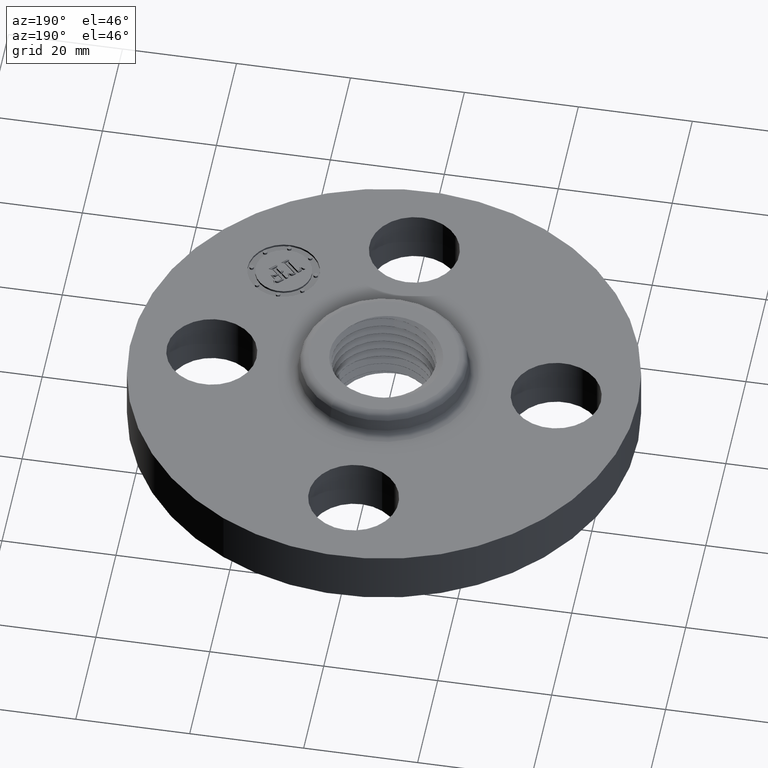
[diagram: clean part render]
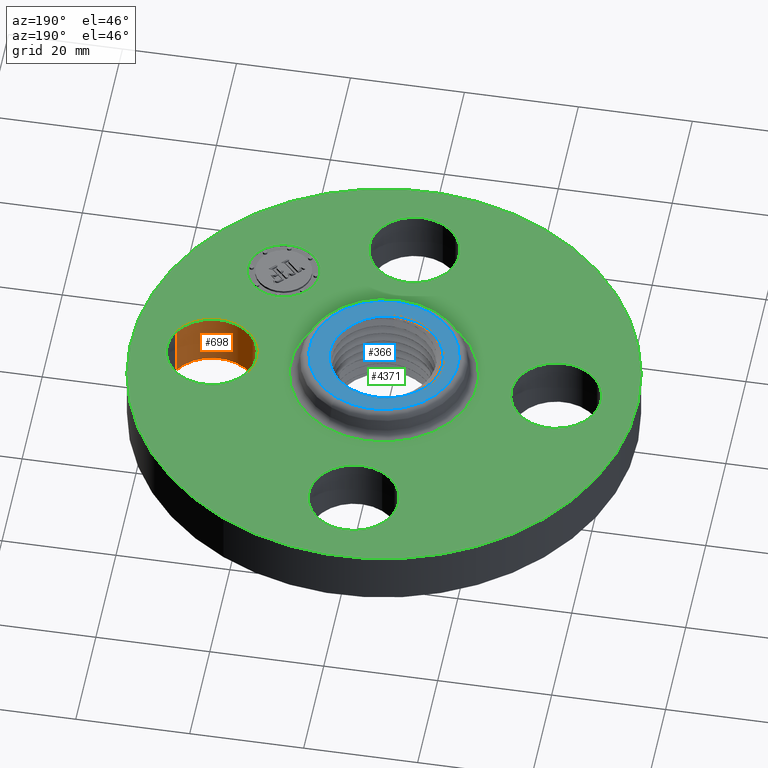
[diagram: same view with three faces highlighted in distinct colors, each labeled with its STEP entity id]
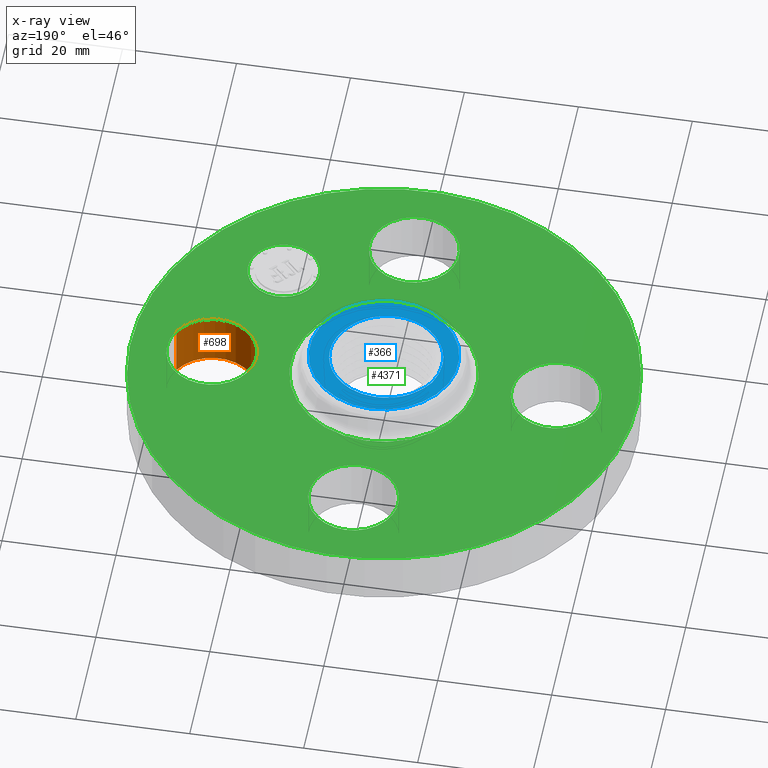
[diagram: x-ray of the same camera — body ghosted, the three highlighted faces saturated]
A machine part, auxiliary view with three faces highlighted in distinct colors.
The next image is the same camera in x-ray (body ghosted, the three faces saturated) — at least one of them is partly hidden behind the body in this view.
Their STEP definitions:

[orange] entity #698 — the highlighted cylindrical surface (partial cylindrical patch) has radius 7.874 mm, axis along (0, -0, -1).
#166=AXIS2_PLACEMENT_3D('Circle Axis2P3D',#164,#165,$) ;
#671=AXIS2_PLACEMENT_3D('Cylinder Axis2P3D',#668,#669,#670) ;
#689=AXIS2_PLACEMENT_3D('Circle Axis2P3D',#687,#688,$) ;
#164=CARTESIAN_POINT('Axis2P3D Location',(1.19,-1.39870617276E-016,0.)) ;
#168=CARTESIAN_POINT('Vertex',(1.46205059419,-0.148621916968,0.)) ;
#170=CARTESIAN_POINT('Vertex',(0.917949405818,0.148621916968,0.)) ;
#668=CARTESIAN_POINT('Axis2P3D Location',(1.19,0.,0.376062992128)) ;
#673=CARTESIAN_POINT('Line Origine',(1.46205059419,-0.148621916968,0.190000000001)) ;
#677=CARTESIAN_POINT('Vertex',(1.46205059419,-0.148621916968,0.380000000002)) ;
#680=CARTESIAN_POINT('Line Origine',(0.917949405818,0.148621916968,0.190000000001)) ;
#684=CARTESIAN_POINT('Vertex',(0.917949405818,0.148621916968,0.380000000002)) ;
#687=CARTESIAN_POINT('Axis2P3D Location',(1.19,0.,0.380000000002)) ;
#165=DIRECTION('Axis2P3D Direction',(0.,0.,-0.0393700787402)) ;
#669=DIRECTION('Axis2P3D Direction',(0.,-0.,-0.0393700787402)) ;
#670=DIRECTION('Axis2P3D XDirection',(-0.0345504945626,0.0188750212049,0.)) ;
#674=DIRECTION('Vector Direction',(0.,0.,-0.0393700787402)) ;
#681=DIRECTION('Vector Direction',(0.,0.,-0.0393700787402)) ;
#688=DIRECTION('Axis2P3D Direction',(0.,-0.,-0.0393700787402)) ;
#675=VECTOR('Line Direction',#674,0.0393700787402) ;
#682=VECTOR('Line Direction',#681,0.0393700787402) ;
#693=ORIENTED_EDGE('',*,*,#679,.F.) ;
#694=ORIENTED_EDGE('',*,*,#172,.T.) ;
#695=ORIENTED_EDGE('',*,*,#686,.T.) ;
#696=ORIENTED_EDGE('',*,*,#691,.F.) ;
#698=ADVANCED_FACE('PartBody',(#697),#672,.F.) ;
#167=CIRCLE('generated circle',#166,0.310000000001) ;
#690=CIRCLE('generated circle',#689,0.310000000001) ;
#672=CYLINDRICAL_SURFACE('generated cylinder',#671,0.310000000001) ;
#172=EDGE_CURVE('',#169,#171,#167,.T.) ;
#679=EDGE_CURVE('',#169,#678,#676,.F.) ;
#686=EDGE_CURVE('',#171,#685,#683,.F.) ;
#691=EDGE_CURVE('',#678,#685,#690,.T.) ;
#692=EDGE_LOOP('',(#693,#694,#695,#696)) ;
#697=FACE_OUTER_BOUND('',#692,.T.) ;
#676=LINE('Line',#673,#675) ;
#683=LINE('Line',#680,#682) ;
#169=VERTEX_POINT('',#168) ;
#171=VERTEX_POINT('',#170) ;
#678=VERTEX_POINT('',#677) ;
#685=VERTEX_POINT('',#684) ;

[blue] entity #366 — the highlighted planar face has unit normal (0, 0, -1).
#240=AXIS2_PLACEMENT_3D('Plane Axis2P3D',#237,#238,#239) ;
#244=AXIS2_PLACEMENT_3D('Circle Axis2P3D',#242,#243,$) ;
#253=AXIS2_PLACEMENT_3D('Circle Axis2P3D',#251,#252,$) ;
#262=AXIS2_PLACEMENT_3D('Circle Axis2P3D',#260,#261,$) ;
#237=CARTESIAN_POINT('Axis2P3D Location',(0.,0.512915165604,0.560000000002)) ;
#242=CARTESIAN_POINT('Axis2P3D Location',(0.,0.,0.560000000002)) ;
#246=CARTESIAN_POINT('Vertex',(0.245904629528,0.450125405063,0.560000000002)) ;
#248=CARTESIAN_POINT('Vertex',(-0.245904629528,-0.450125405063,0.560000000002)) ;
#251=CARTESIAN_POINT('Axis2P3D Location',(0.,0.,0.560000000002)) ;
#260=CARTESIAN_POINT('Axis2P3D Location',(3.49676543189E-017,0.,0.560000000002)) ;
#264=CARTESIAN_POINT('Vertex',(0.303226636795,-0.19415982399,0.55999983672)) ;
#266=CARTESIAN_POINT('Vertex',(0.271763771656,-0.23619671375,0.560000043672)) ;
#270=CARTESIAN_POINT('Control Point',(0.175885699981,-0.321954118521,0.560000000002)) ;
#271=CARTESIAN_POINT('Control Point',(0.198020836911,-0.308317199989,0.560000000002)) ;
#272=CARTESIAN_POINT('Control Point',(0.218891347152,-0.292750687006,0.560000000002)) ;
#273=CARTESIAN_POINT('Control Point',(0.238265993291,-0.27540750753,0.560000000002)) ;
#274=CARTESIAN_POINT('Control Point',(0.255943494932,-0.256481932588,0.560000000002)) ;
#275=CARTESIAN_POINT('Control Point',(0.271763692561,-0.236196661494,0.560000000002)) ;
#276=CARTESIAN_POINT('Vertex',(0.175885699981,-0.321954118521,0.560000000002)) ;
#280=CARTESIAN_POINT('Control Point',(1.07858490947E-006,-0.376440628624,0.560000000002)) ;
#281=CARTESIAN_POINT('Control Point',(0.0374170056616,-0.374537086803,0.560000000002)) ;
#282=CARTESIAN_POINT('Control Point',(0.0744716476934,-0.367979244206,0.560000000002)) ;
#283=CARTESIAN_POINT('Control Point',(0.11040407537,-0.356823018752,0.560000000002)) ;
#284=CARTESIAN_POINT('Control Point',(0.144422442603,-0.341337864792,0.560000000002)) ;
#285=CARTESIAN_POINT('Control Point',(0.175885699981,-0.321954118521,0.560000000002)) ;
#286=CARTESIAN_POINT('Vertex',(1.07858490947E-006,-0.376440628624,0.560000000002)) ;
#290=CARTESIAN_POINT('Control Point',(-0.367122974252,0.195408545747,0.560000000002)) ;
#291=CARTESIAN_POINT('Control Point',(-0.385067261913,0.157598348407,0.560000000002)) ;
#292=CARTESIAN_POINT('Control Point',(-0.398200343318,0.117634301721,0.560000000002)) ;
#293=CARTESIAN_POINT('Control Point',(-0.406160625388,0.0763168017211,0.560000000002)) ;
#294=CARTESIAN_POINT('Control Point',(-0.410882939198,0.00116509146093,0.560000000002)) ;
#295=CARTESIAN_POINT('Control Point',(-0.398567287668,-0.0725302165956,0.560000000002)) ;
#296=CARTESIAN_POINT('Control Point',(-0.38976881603,-0.104527307294,0.560000000002)) ;
#297=CARTESIAN_POINT('Control Point',(-0.362792365286,-0.173807708988,0.560000000002)) ;
#298=CARTESIAN_POINT('Control Point',(-0.320799856773,-0.234908153153,0.560000000002)) ;
#299=CARTESIAN_POINT('Control Point',(-0.293269642997,-0.265531525144,0.560000000002)) ;
#300=CARTESIAN_POINT('Control Point',(-0.231101421794,-0.318774121899,0.560000000002)) ;
#301=CARTESIAN_POINT('Control Point',(-0.157832769022,-0.354079330652,0.560000000002)) ;
#302=CARTESIAN_POINT('Control Point',(-0.119190587789,-0.366768460797,0.560000000002)) ;
#303=CARTESIAN_POINT('Control Point',(-0.0715748262744,-0.375684363477,0.560000000002)) ;
#304=CARTESIAN_POINT('Control Point',(-0.0237400826647,-0.377023229892,0.560000000002)) ;
#305=CARTESIAN_POINT('Control Point',(-0.0158093045631,-0.37703682523,0.560000000002)) ;
#306=CARTESIAN_POINT('Control Point',(-0.0078960669187,-0.376842397266,0.560000000002)) ;
#307=CARTESIAN_POINT('Control Point',(1.07858490958E-006,-0.376440628624,0.560000000002)) ;
#308=CARTESIAN_POINT('Vertex',(-0.367122974252,0.195408545747,0.560000000002)) ;
#312=CARTESIAN_POINT('Control Point',(-0.367122974252,0.195408545747,0.560000000002)) ;
#313=CARTESIAN_POINT('Control Point',(-0.344873934272,0.233315249484,0.560000000002)) ;
#314=CARTESIAN_POINT('Control Point',(-0.317667638603,0.268186947047,0.560000000002)) ;
#315=CARTESIAN_POINT('Control Point',(-0.28602899032,0.299152422083,0.560000000002)) ;
#316=CARTESIAN_POINT('Control Point',(-0.247406688408,0.327941758176,0.560000000002)) ;
#317=CARTESIAN_POINT('Control Point',(-0.205509186502,0.350568777477,0.560000000002)) ;
#318=CARTESIAN_POINT('Control Point',(-0.20187920545,0.352470417993,0.560000000002)) ;
#319=CARTESIAN_POINT('Control Point',(-0.198227533781,0.354325078231,0.560000000002)) ;
#320=CARTESIAN_POINT('Control Point',(-0.194553964888,0.356132912841,0.560000000002)) ;
#321=CARTESIAN_POINT('Vertex',(-0.194553964888,0.356132912841,0.560000000002)) ;
#325=CARTESIAN_POINT('Control Point',(-0.194553964888,0.356132912841,0.560000000002)) ;
#326=CARTESIAN_POINT('Control Point',(-0.161889371501,0.372207793666,0.560000000002)) ;
#327=CARTESIAN_POINT('Control Point',(-0.127493531369,0.384580458599,0.560000000002)) ;
#328=CARTESIAN_POINT('Control Point',(-0.0919095960874,0.392990698652,0.560000000002)) ;
#329=CARTESIAN_POINT('Control Point',(-0.0518247995843,0.39777077206,0.560000000002)) ;
#330=CARTESIAN_POINT('Control Point',(-0.0118151227335,0.397515379548,0.560000000002)) ;
#331=CARTESIAN_POINT('Control Point',(-0.00787243858617,0.397441284899,0.560000000002)) ;
#332=CARTESIAN_POINT('Control Point',(-0.0039331349192,0.397318337377,0.560000000002)) ;
#333=CARTESIAN_POINT('Control Point',(3.02082424722E-006,0.397146576951,0.560000000002)) ;
#334=CARTESIAN_POINT('Vertex',(3.02082424725E-006,0.397146576951,0.560000000002)) ;
#338=CARTESIAN_POINT('Control Point',(3.02082424718E-006,0.397146576951,0.560000000002)) ;
#339=CARTESIAN_POINT('Control Point',(0.0408746285088,0.395363079424,0.560000000002)) ;
#340=CARTESIAN_POINT('Control Point',(0.0814067849757,0.388316590039,0.560000000002)) ;
#341=CARTESIAN_POINT('Control Point',(0.120684605011,0.37606329597,0.560000000002)) ;
#342=CARTESIAN_POINT('Control Point',(0.194948864503,0.341747986542,0.560000000002)) ;
#343=CARTESIAN_POINT('Control Point',(0.257571560428,0.289840066362,0.560000000002)) ;
#344=CARTESIAN_POINT('Control Point',(0.285216413669,0.259984357491,0.560000000002)) ;
#345=CARTESIAN_POINT('Control Point',(0.32254468654,0.20712666374,0.560000000002)) ;
#346=CARTESIAN_POINT('Control Point',(0.347780474909,0.148238095617,0.560000000002)) ;
#347=CARTESIAN_POINT('Control Point',(0.355452374334,0.125490539608,0.560000000002)) ;
#348=CARTESIAN_POINT('Control Point',(0.37097068712,0.0635720861648,0.560000000002)) ;
#349=CARTESIAN_POINT('Control Point',(0.37311209499,-0.000261050015573,0.560000000002)) ;
#350=CARTESIAN_POINT('Control Point',(0.369090753497,-0.0399700342336,0.560000000002)) ;
#351=CARTESIAN_POINT('Control Point',(0.355571961367,-0.0963026493532,0.560000000002)) ;
#352=CARTESIAN_POINT('Control Point',(0.33166475394,-0.148317302841,0.560000000002)) ;
#353=CARTESIAN_POINT('Control Point',(0.323119655055,-0.164219411596,0.560000000002)) ;
#354=CARTESIAN_POINT('Control Point',(0.313621663483,-0.179524990961,0.560000000002)) ;
#355=CARTESIAN_POINT('Control Point',(0.303226429153,-0.194159697024,0.560000000002)) ;
#238=DIRECTION('Axis2P3D Direction',(0.,0.,-0.0393700787402)) ;
#239=DIRECTION('Axis2P3D XDirection',(0.0393700787402,0.,0.)) ;
#243=DIRECTION('Axis2P3D Direction',(0.,0.,-0.0393700787402)) ;
#252=DIRECTION('Axis2P3D Direction',(0.,0.,-0.0393700787402)) ;
#261=DIRECTION('Axis2P3D Direction',(0.,0.,-0.0393700787402)) ;
#257=ORIENTED_EDGE('',*,*,#250,.F.) ;
#258=ORIENTED_EDGE('',*,*,#255,.F.) ;
#358=ORIENTED_EDGE('',*,*,#268,.T.) ;
#359=ORIENTED_EDGE('',*,*,#278,.F.) ;
#360=ORIENTED_EDGE('',*,*,#288,.F.) ;
#361=ORIENTED_EDGE('',*,*,#310,.F.) ;
#362=ORIENTED_EDGE('',*,*,#323,.T.) ;
#363=ORIENTED_EDGE('',*,*,#336,.T.) ;
#364=ORIENTED_EDGE('',*,*,#356,.T.) ;
#365=FACE_BOUND('',#357,.T.) ;
#366=ADVANCED_FACE('PartBody',(#259,#365),#241,.F.) ;
#269=B_SPLINE_CURVE_WITH_KNOTS('',5,(#270,#271,#272,#273,#274,#275),.UNSPECIFIED.,.F.,.U.,(6,6),(0.,4.81634190142),.UNSPECIFIED.) ;
#279=B_SPLINE_CURVE_WITH_KNOTS('',5,(#280,#281,#282,#283,#284,#285),.UNSPECIFIED.,.F.,.U.,(6,6),(0.,6.84602970269),.UNSPECIFIED.) ;
#289=B_SPLINE_CURVE_WITH_KNOTS('',5,(#290,#291,#292,#293,#294,#295,#296,#297,#298,#299,#300,#301,#302,#303,#304,#305,#306,#307),.UNSPECIFIED.,.F.,.U.,(6,3,3,3,3,6),(0.,7.28034621343,13.1015462095,20.3778601151,27.6564216365,29.1013702694),.UNSPECIFIED.) ;
#311=B_SPLINE_CURVE_WITH_KNOTS('',5,(#312,#313,#314,#315,#316,#317,#318,#319,#320),.UNSPECIFIED.,.F.,.U.,(6,3,6),(0.,7.64552726927,8.3654131561),.UNSPECIFIED.) ;
#324=B_SPLINE_CURVE_WITH_KNOTS('',5,(#325,#326,#327,#328,#329,#330,#331,#332,#333),.UNSPECIFIED.,.F.,.U.,(6,3,6),(0.,6.40107221148,7.10090774197),.UNSPECIFIED.) ;
#337=B_SPLINE_CURVE_WITH_KNOTS('',5,(#338,#339,#340,#341,#342,#343,#344,#345,#346,#347,#348,#349,#350,#351,#352,#353,#354,#355),.UNSPECIFIED.,.F.,.U.,(6,3,3,3,3,6),(0.,7.26683726532,14.5357873405,18.8954227001,26.1617476559,29.5129783791),.UNSPECIFIED.) ;
#245=CIRCLE('generated circle',#244,0.512915165604) ;
#254=CIRCLE('generated circle',#253,0.512915165604) ;
#263=CIRCLE('generated circle',#262,0.360061708862) ;
#250=EDGE_CURVE('',#247,#249,#245,.T.) ;
#255=EDGE_CURVE('',#249,#247,#254,.T.) ;
#268=EDGE_CURVE('',#265,#267,#263,.T.) ;
#278=EDGE_CURVE('',#277,#267,#269,.T.) ;
#288=EDGE_CURVE('',#287,#277,#279,.T.) ;
#310=EDGE_CURVE('',#309,#287,#289,.T.) ;
#323=EDGE_CURVE('',#309,#322,#311,.T.) ;
#336=EDGE_CURVE('',#322,#335,#324,.T.) ;
#356=EDGE_CURVE('',#335,#265,#337,.T.) ;
#256=EDGE_LOOP('',(#257,#258)) ;
#357=EDGE_LOOP('',(#358,#359,#360,#361,#362,#363,#364)) ;
#259=FACE_OUTER_BOUND('',#256,.T.) ;
#241=PLANE('',#240) ;
#247=VERTEX_POINT('',#246) ;
#249=VERTEX_POINT('',#248) ;
#265=VERTEX_POINT('',#264) ;
#267=VERTEX_POINT('',#266) ;
#277=VERTEX_POINT('',#276) ;
#287=VERTEX_POINT('',#286) ;
#309=VERTEX_POINT('',#308) ;
#322=VERTEX_POINT('',#321) ;
#335=VERTEX_POINT('',#334) ;

[green] entity #4371 — the highlighted planar face has unit normal (0, 0, -1).
#388=AXIS2_PLACEMENT_3D('Circle Axis2P3D',#386,#387,$) ;
#400=AXIS2_PLACEMENT_3D('Circle Axis2P3D',#398,#399,$) ;
#431=AXIS2_PLACEMENT_3D('Circle Axis2P3D',#429,#430,$) ;
#443=AXIS2_PLACEMENT_3D('Circle Axis2P3D',#441,#442,$) ;
#474=AXIS2_PLACEMENT_3D('Circle Axis2P3D',#472,#473,$) ;
#486=AXIS2_PLACEMENT_3D('Circle Axis2P3D',#484,#485,$) ;
#589=AXIS2_PLACEMENT_3D('Circle Axis2P3D',#587,#588,$) ;
#615=AXIS2_PLACEMENT_3D('Circle Axis2P3D',#613,#614,$) ;
#639=AXIS2_PLACEMENT_3D('Circle Axis2P3D',#637,#638,$) ;
#658=AXIS2_PLACEMENT_3D('Circle Axis2P3D',#656,#657,$) ;
#689=AXIS2_PLACEMENT_3D('Circle Axis2P3D',#687,#688,$) ;
#701=AXIS2_PLACEMENT_3D('Circle Axis2P3D',#699,#700,$) ;
#4327=AXIS2_PLACEMENT_3D('Plane Axis2P3D',#4324,#4325,#4326) ;
#4355=AXIS2_PLACEMENT_3D('Circle Axis2P3D',#4353,#4354,$) ;
#4364=AXIS2_PLACEMENT_3D('Circle Axis2P3D',#4362,#4363,$) ;
#376=CARTESIAN_POINT('Vertex',(-0.148621916968,-1.46205059419,0.380000000002)) ;
#383=CARTESIAN_POINT('Vertex',(0.148621916968,-0.917949405818,0.380000000002)) ;
#386=CARTESIAN_POINT('Axis2P3D Location',(-6.70041327261E-017,-1.19,0.380000000002)) ;
#398=CARTESIAN_POINT('Axis2P3D Location',(-6.70041327261E-017,-1.19,0.380000000002)) ;
#419=CARTESIAN_POINT('Vertex',(-1.46205059419,0.148621916968,0.380000000002)) ;
#426=CARTESIAN_POINT('Vertex',(-0.917949405818,-0.148621916968,0.380000000002)) ;
#429=CARTESIAN_POINT('Axis2P3D Location',(-1.19,-1.45732969099E-016,0.380000000002)) ;
#441=CARTESIAN_POINT('Axis2P3D Location',(-1.19,-1.45732969099E-016,0.380000000002)) ;
#462=CARTESIAN_POINT('Vertex',(0.148621916968,1.46205059419,0.380000000002)) ;
#469=CARTESIAN_POINT('Vertex',(-0.148621916968,0.917949405818,0.380000000002)) ;
#472=CARTESIAN_POINT('Axis2P3D Location',(-7.87288363731E-017,1.19,0.380000000002)) ;
#484=CARTESIAN_POINT('Axis2P3D Location',(-7.87288363731E-017,1.19,0.380000000002)) ;
#587=CARTESIAN_POINT('Axis2P3D Location',(0.,0.,0.380000000002)) ;
#591=CARTESIAN_POINT('Vertex',(-0.309395343028,-0.566344376568,0.380000000002)) ;
#593=CARTESIAN_POINT('Vertex',(0.309395343028,0.566344376568,0.380000000002)) ;
#613=CARTESIAN_POINT('Axis2P3D Location',(0.,0.,0.380000000002)) ;
#634=CARTESIAN_POINT('Vertex',(-0.838994692561,-1.53576948331,0.380000000002)) ;
#637=CARTESIAN_POINT('Axis2P3D Location',(0.,0.,0.380000000002)) ;
#641=CARTESIAN_POINT('Vertex',(0.838994692561,1.53576948331,0.380000000002)) ;
#656=CARTESIAN_POINT('Axis2P3D Location',(0.,0.,0.380000000002)) ;
#677=CARTESIAN_POINT('Vertex',(1.46205059419,-0.148621916968,0.380000000002)) ;
#684=CARTESIAN_POINT('Vertex',(0.917949405818,0.148621916968,0.380000000002)) ;
#687=CARTESIAN_POINT('Axis2P3D Location',(1.19,0.,0.380000000002)) ;
#699=CARTESIAN_POINT('Axis2P3D Location',(1.19,0.,0.380000000002)) ;
#4324=CARTESIAN_POINT('Axis2P3D Location',(0.,1.75000000001,0.380000000002)) ;
#4353=CARTESIAN_POINT('Axis2P3D Location',(0.841457069615,-0.841457069615,0.380000000002)) ;
#4357=CARTESIAN_POINT('Vertex',(1.01646599796,-0.666448141271,0.380000000002)) ;
#4359=CARTESIAN_POINT('Vertex',(0.666448141271,-1.01646599796,0.380000000002)) ;
#4362=CARTESIAN_POINT('Axis2P3D Location',(0.841457069615,-0.841457069615,0.380000000002)) ;
#387=DIRECTION('Axis2P3D Direction',(0.,-0.,-0.0393700787402)) ;
#399=DIRECTION('Axis2P3D Direction',(0.,-0.,-0.0393700787402)) ;
#430=DIRECTION('Axis2P3D Direction',(-0.,0.,-0.0393700787402)) ;
#442=DIRECTION('Axis2P3D Direction',(-0.,0.,-0.0393700787402)) ;
#473=DIRECTION('Axis2P3D Direction',(0.,0.,-0.0393700787402)) ;
#485=DIRECTION('Axis2P3D Direction',(0.,0.,-0.0393700787402)) ;
#588=DIRECTION('Axis2P3D Direction',(0.,0.,-0.0393700787402)) ;
#614=DIRECTION('Axis2P3D Direction',(0.,0.,-0.0393700787402)) ;
#638=DIRECTION('Axis2P3D Direction',(0.,0.,-0.0393700787402)) ;
#657=DIRECTION('Axis2P3D Direction',(0.,0.,-0.0393700787402)) ;
#688=DIRECTION('Axis2P3D Direction',(0.,-0.,-0.0393700787402)) ;
#700=DIRECTION('Axis2P3D Direction',(0.,-0.,-0.0393700787402)) ;
#4325=DIRECTION('Axis2P3D Direction',(0.,0.,-0.0393700787402)) ;
#4326=DIRECTION('Axis2P3D XDirection',(0.0393700787402,0.,0.)) ;
#4354=DIRECTION('Axis2P3D Direction',(0.,0.,-0.0393700787402)) ;
#4363=DIRECTION('Axis2P3D Direction',(0.,0.,-0.0393700787402)) ;
#4330=ORIENTED_EDGE('',*,*,#660,.F.) ;
#4331=ORIENTED_EDGE('',*,*,#643,.F.) ;
#4334=ORIENTED_EDGE('',*,*,#703,.T.) ;
#4335=ORIENTED_EDGE('',*,*,#691,.T.) ;
#4338=ORIENTED_EDGE('',*,*,#595,.T.) ;
#4339=ORIENTED_EDGE('',*,*,#617,.T.) ;
#4342=ORIENTED_EDGE('',*,*,#390,.T.) ;
#4343=ORIENTED_EDGE('',*,*,#402,.T.) ;
#4346=ORIENTED_EDGE('',*,*,#433,.T.) ;
#4347=ORIENTED_EDGE('',*,*,#445,.T.) ;
#4350=ORIENTED_EDGE('',*,*,#476,.T.) ;
#4351=ORIENTED_EDGE('',*,*,#488,.T.) ;
#4368=ORIENTED_EDGE('',*,*,#4361,.T.) ;
#4369=ORIENTED_EDGE('',*,*,#4366,.T.) ;
#4336=FACE_BOUND('',#4333,.T.) ;
#4340=FACE_BOUND('',#4337,.T.) ;
#4344=FACE_BOUND('',#4341,.T.) ;
#4348=FACE_BOUND('',#4345,.T.) ;
#4352=FACE_BOUND('',#4349,.T.) ;
#4370=FACE_BOUND('',#4367,.T.) ;
#4371=ADVANCED_FACE('PartBody',(#4332,#4336,#4340,#4344,#4348,#4352,#4370),#4328,.F.) ;
#389=CIRCLE('generated circle',#388,0.310000000001) ;
#401=CIRCLE('generated circle',#400,0.310000000001) ;
#432=CIRCLE('generated circle',#431,0.310000000001) ;
#444=CIRCLE('generated circle',#443,0.310000000001) ;
#475=CIRCLE('generated circle',#474,0.310000000001) ;
#487=CIRCLE('generated circle',#486,0.310000000001) ;
#590=CIRCLE('generated circle',#589,0.645345977873) ;
#616=CIRCLE('generated circle',#615,0.645345977873) ;
#640=CIRCLE('generated circle',#639,1.75000000001) ;
#659=CIRCLE('generated circle',#658,1.75000000001) ;
#690=CIRCLE('generated circle',#689,0.310000000001) ;
#702=CIRCLE('generated circle',#701,0.310000000001) ;
#4356=CIRCLE('generated circle',#4355,0.247500000001) ;
#4365=CIRCLE('generated circle',#4364,0.247500000001) ;
#390=EDGE_CURVE('',#377,#384,#389,.T.) ;
#402=EDGE_CURVE('',#384,#377,#401,.T.) ;
#433=EDGE_CURVE('',#420,#427,#432,.T.) ;
#445=EDGE_CURVE('',#427,#420,#444,.T.) ;
#476=EDGE_CURVE('',#463,#470,#475,.T.) ;
#488=EDGE_CURVE('',#470,#463,#487,.T.) ;
#595=EDGE_CURVE('',#592,#594,#590,.T.) ;
#617=EDGE_CURVE('',#594,#592,#616,.T.) ;
#643=EDGE_CURVE('',#635,#642,#640,.T.) ;
#660=EDGE_CURVE('',#642,#635,#659,.T.) ;
#691=EDGE_CURVE('',#678,#685,#690,.T.) ;
#703=EDGE_CURVE('',#685,#678,#702,.T.) ;
#4361=EDGE_CURVE('',#4358,#4360,#4356,.T.) ;
#4366=EDGE_CURVE('',#4360,#4358,#4365,.T.) ;
#4329=EDGE_LOOP('',(#4330,#4331)) ;
#4333=EDGE_LOOP('',(#4334,#4335)) ;
#4337=EDGE_LOOP('',(#4338,#4339)) ;
#4341=EDGE_LOOP('',(#4342,#4343)) ;
#4345=EDGE_LOOP('',(#4346,#4347)) ;
#4349=EDGE_LOOP('',(#4350,#4351)) ;
#4367=EDGE_LOOP('',(#4368,#4369)) ;
#4332=FACE_OUTER_BOUND('',#4329,.T.) ;
#4328=PLANE('',#4327) ;
#377=VERTEX_POINT('',#376) ;
#384=VERTEX_POINT('',#383) ;
#420=VERTEX_POINT('',#419) ;
#427=VERTEX_POINT('',#426) ;
#463=VERTEX_POINT('',#462) ;
#470=VERTEX_POINT('',#469) ;
#592=VERTEX_POINT('',#591) ;
#594=VERTEX_POINT('',#593) ;
#635=VERTEX_POINT('',#634) ;
#642=VERTEX_POINT('',#641) ;
#678=VERTEX_POINT('',#677) ;
#685=VERTEX_POINT('',#684) ;
#4358=VERTEX_POINT('',#4357) ;
#4360=VERTEX_POINT('',#4359) ;